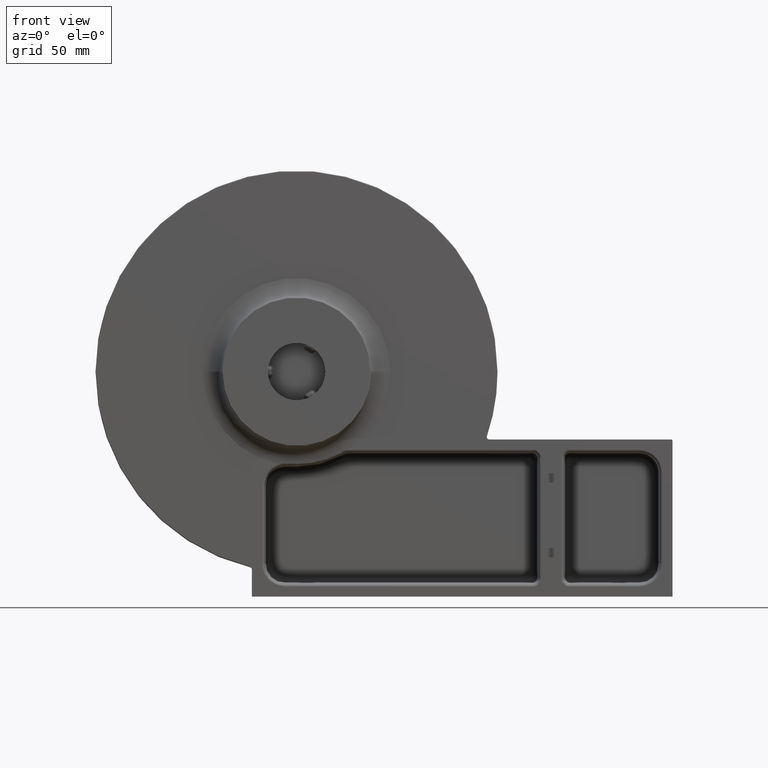
[diagram: clean part render]
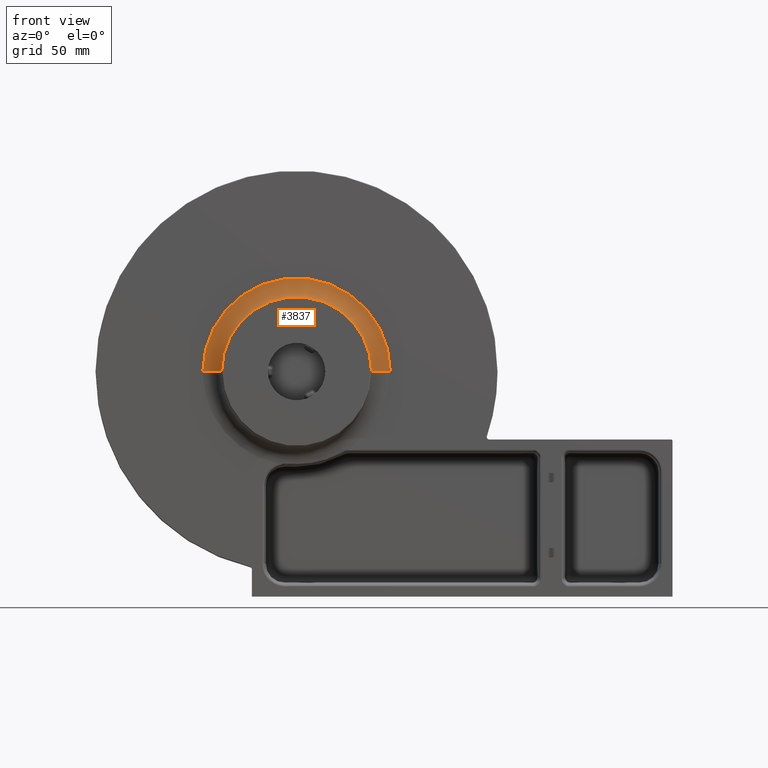
[diagram: same view with one face highlighted and labeled with its STEP entity id]
A machine part, front view. The second image highlights one B-rep face of the part: STEP entity #3837.
In plain terms, the highlighted toroidal blend (fillet) surface has major radius 75 mm and minor (blend) radius 15 mm.
Its self-contained STEP definition (entity closure, byte-faithful):
#809 = VERTEX_POINT ( 'NONE', #7529 ) ;
#976 = VERTEX_POINT ( 'NONE', #7262 ) ;
#1502 = CARTESIAN_POINT ( 'NONE',  ( 75.00000000000005684, 6.799390972752662243, 9.184850993605153466E-15 ) ) ;
#1789 = DIRECTION ( 'NONE',  ( -1.000000000000000000, 0.0000000000000000000, 0.0000000000000000000 ) ) ;
#2179 = CARTESIAN_POINT ( 'NONE',  ( 75.00000000000005684, 21.79939097275265780, 9.184850993605153466E-15 ) ) ;
#2962 = AXIS2_PLACEMENT_3D ( 'NONE', #1502, #4726, #7694 ) ;
#3160 = DIRECTION ( 'NONE',  ( -1.000000000000000000, -1.387778780781444936E-16, 0.0000000000000000000 ) ) ;
#3184 = CARTESIAN_POINT ( 'NONE',  ( 1.342787453874985760E-14, 6.799390972752658691, 0.0000000000000000000 ) ) ;
#3815 = ORIENTED_EDGE ( 'NONE', *, *, #7775, .T. ) ;
#3837 = ADVANCED_FACE ( 'NONE', ( #5342 ), #9299, .F. ) ;
#3903 = AXIS2_PLACEMENT_3D ( 'NONE', #5755, #8532, #1789 ) ;
#3995 = ORIENTED_EDGE ( 'NONE', *, *, #5733, .T. ) ;
#4012 = ORIENTED_EDGE ( 'NONE', *, *, #7476, .F. ) ;
#4087 = CIRCLE ( 'NONE', #9223, 75.00000000000004263 ) ;
#4136 = ORIENTED_EDGE ( 'NONE', *, *, #7764, .F. ) ;
#4196 = AXIS2_PLACEMENT_3D ( 'NONE', #5325, #5314, #5310 ) ;
#4700 = CARTESIAN_POINT ( 'NONE',  ( 1.160593908360143518E-14, 21.79939097275264359, 0.0000000000000000000 ) ) ;
#4726 = DIRECTION ( 'NONE',  ( -1.224646799147353207E-16, -1.487484948933726914E-32, 1.000000000000000000 ) ) ;
#4762 = VERTEX_POINT ( 'NONE', #2179 ) ;
#5310 = DIRECTION ( 'NONE',  ( -1.000000000000000000, -1.214623636765614367E-16, 0.0000000000000000000 ) ) ;
#5314 = DIRECTION ( 'NONE',  ( -1.214623636765614367E-16, 1.000000000000000000, -0.0000000000000000000 ) ) ;
#5325 = CARTESIAN_POINT ( 'NONE',  ( 1.387778780781445676E-14, 6.799390972752652473, 0.0000000000000000000 ) ) ;
#5342 = FACE_OUTER_BOUND ( 'NONE', #7810, .T. ) ;
#5595 = AXIS2_PLACEMENT_3D ( 'NONE', #3184, #6262, #8920 ) ;
#5733 = EDGE_CURVE ( 'NONE', #976, #809, #8120, .T. ) ;
#5755 = CARTESIAN_POINT ( 'NONE',  ( -75.00000000000002842, 6.799390972752642703, 0.0000000000000000000 ) ) ;
#6262 = DIRECTION ( 'NONE',  ( -1.214623636765614367E-16, 1.000000000000000000, -0.0000000000000000000 ) ) ;
#7033 = CARTESIAN_POINT ( 'NONE',  ( 60.00000000000005684, 6.799390972752665796, 7.347880794884123089E-15 ) ) ;
#7262 = CARTESIAN_POINT ( 'NONE',  ( -75.00000000000002842, 21.79939097275263649, 0.0000000000000000000 ) ) ;
#7271 = CIRCLE ( 'NONE', #2962, 15.00000000000000000 ) ;
#7476 = EDGE_CURVE ( 'NONE', #976, #4762, #4087, .T. ) ;
#7529 = CARTESIAN_POINT ( 'NONE',  ( -60.00000000000002842, 6.799390972752651585, 0.0000000000000000000 ) ) ;
#7694 = DIRECTION ( 'NONE',  ( 1.000000000000000000, 0.0000000000000000000, 1.224646799147352468E-16 ) ) ;
#7764 = EDGE_CURVE ( 'NONE', #4762, #7814, #7271, .T. ) ;
#7775 = EDGE_CURVE ( 'NONE', #809, #7814, #9355, .T. ) ;
#7810 = EDGE_LOOP ( 'NONE', ( #4136, #4012, #3995, #3815 ) ) ;
#7814 = VERTEX_POINT ( 'NONE', #7033 ) ;
#8120 = CIRCLE ( 'NONE', #3903, 15.00000000000000000 ) ;
#8532 = DIRECTION ( 'NONE',  ( 0.0000000000000000000, -0.0000000000000000000, -1.000000000000000000 ) ) ;
#8920 = DIRECTION ( 'NONE',  ( -1.000000000000000000, -1.156482317317870492E-16, 0.0000000000000000000 ) ) ;
#9223 = AXIS2_PLACEMENT_3D ( 'NONE', #4700, #9492, #3160 ) ;
#9299 = TOROIDAL_SURFACE ( 'NONE', #4196, 75.00000000000004263, 15.00000000000000000 ) ;
#9355 = CIRCLE ( 'NONE', #5595, 60.00000000000004263 ) ;
#9492 = DIRECTION ( 'NONE',  ( -1.214623636765614367E-16, 1.000000000000000000, -0.0000000000000000000 ) ) ;